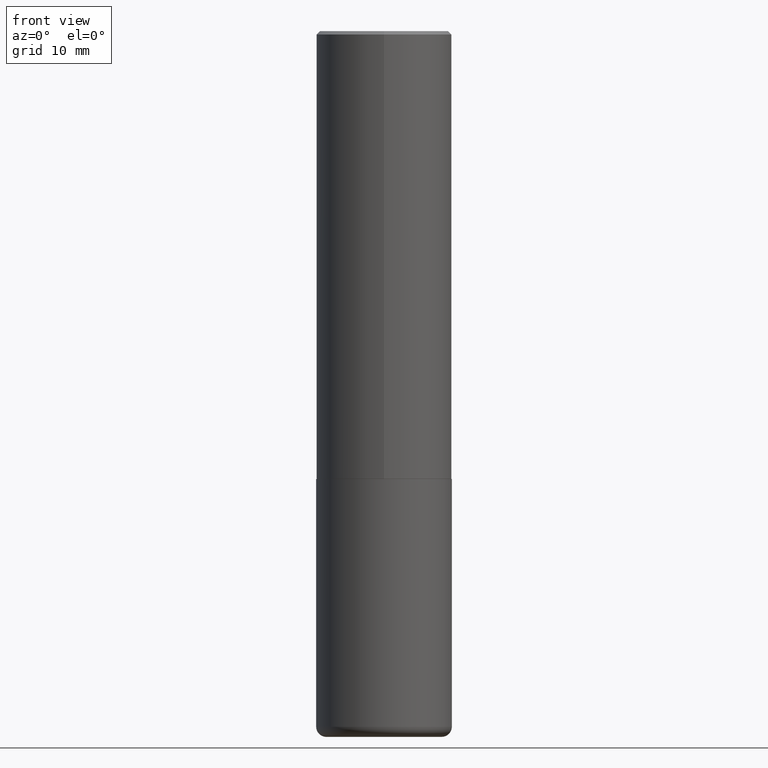
[diagram: clean part render]
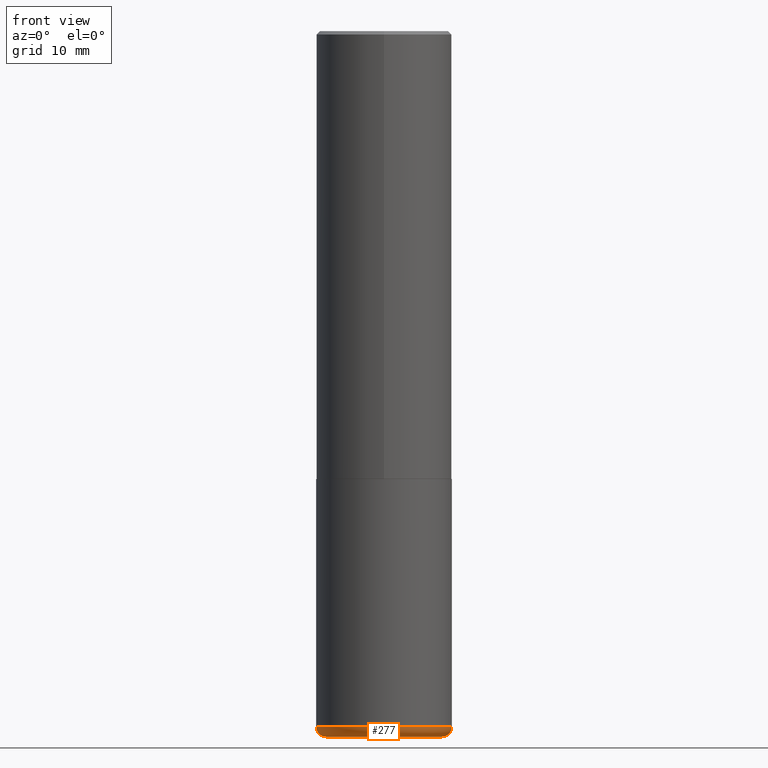
[diagram: same view with one face highlighted and labeled with its STEP entity id]
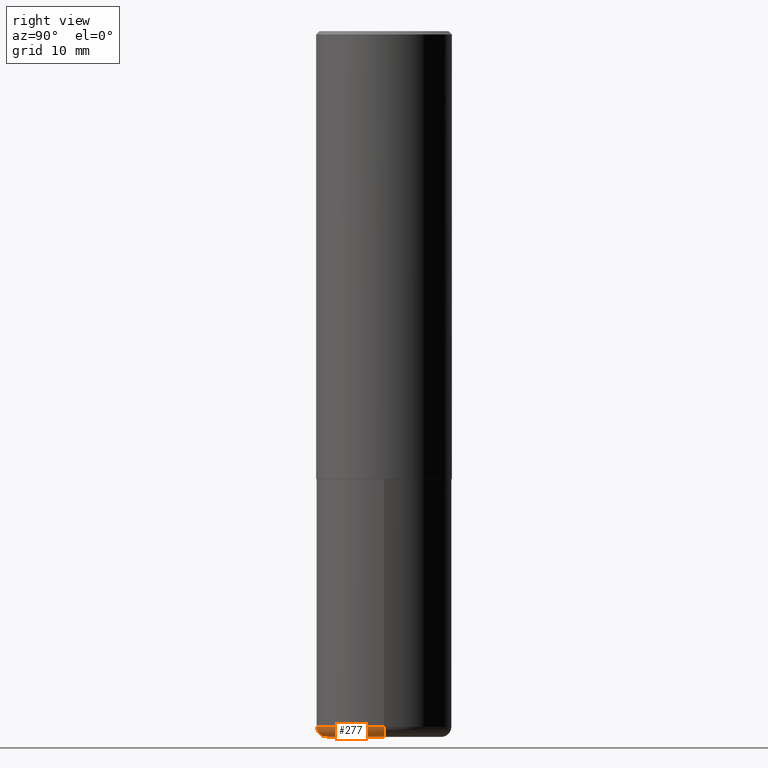
[diagram: same view with one face highlighted and labeled with its STEP entity id]
A machine part, front view. The second image highlights one B-rep face of the part: STEP entity #277.
A second angle (right view) of the same face is appended — the face is thin or edge-on in the first view.
In plain terms, the highlighted toroidal blend (fillet) surface has major radius 8.4988 mm and minor (blend) radius 1.5011 mm.
Its self-contained STEP definition (entity closure, byte-faithful):
#3 = VERTEX_POINT ( 'NONE', #144 ) ;
#8 = CIRCLE ( 'NONE', #206, 0.05909999999999992343 ) ;
#17 = TOROIDAL_SURFACE ( 'NONE', #377, 0.3346000000000000085, 0.05909999999999992343 ) ;
#26 = CARTESIAN_POINT ( 'NONE',  ( -0.3936999999999999389, -1.129211704408011394E-14, -4.035400000000000098 ) ) ;
#31 = CARTESIAN_POINT ( 'NONE',  ( -0.3346000000000000085, -1.171204780091433423E-14, -4.035400000000000098 ) ) ;
#40 = CIRCLE ( 'NONE', #225, 0.05909999999999992343 ) ;
#42 = VERTEX_POINT ( 'NONE', #274 ) ;
#49 = CARTESIAN_POINT ( 'NONE',  ( 9.868444820479501934E-29, -1.408952379476762952E-14, -4.035400000000000098 ) ) ;
#88 = CARTESIAN_POINT ( 'NONE',  ( 1.001297202692504215E-28, -1.429587034189326149E-14, -4.094500000000000028 ) ) ;
#95 = ORIENTED_EDGE ( 'NONE', *, *, #296, .T. ) ;
#98 = DIRECTION ( 'NONE',  ( 7.105427357601001859E-15, 1.000000000000000000, -3.491481338843145583E-15 ) ) ;
#111 = ORIENTED_EDGE ( 'NONE', *, *, #251, .F. ) ;
#119 = ORIENTED_EDGE ( 'NONE', *, *, #165, .T. ) ;
#124 = CIRCLE ( 'NONE', #261, 0.3936999999999999389 ) ;
#144 = CARTESIAN_POINT ( 'NONE',  ( 0.3936999999999999389, -1.683871620097271431E-14, -4.035400000000000098 ) ) ;
#149 = CARTESIAN_POINT ( 'NONE',  ( 0.3346000000000000085, -1.642602310672145667E-14, -4.035400000000000098 ) ) ;
#153 = DIRECTION ( 'NONE',  ( -2.445468806185136597E-29, 3.491481338843145583E-15, 1.000000000000000000 ) ) ;
#165 = EDGE_CURVE ( 'NONE', #245, #42, #233, .T. ) ;
#173 = VERTEX_POINT ( 'NONE', #26 ) ;
#185 = DIRECTION ( 'NONE',  ( -2.445468806185136597E-29, 3.491481338843145583E-15, 1.000000000000000000 ) ) ;
#188 = DIRECTION ( 'NONE',  ( 1.000000000000000000, -6.982962677686269077E-15, 4.883557194083114022E-29 ) ) ;
#202 = DIRECTION ( 'NONE',  ( 1.000000000000000000, -6.982962677686269866E-15, 0.000000000000000000 ) ) ;
#206 = AXIS2_PLACEMENT_3D ( 'NONE', #149, #253, #220 ) ;
#217 = AXIS2_PLACEMENT_3D ( 'NONE', #88, #415, #383 ) ;
#220 = DIRECTION ( 'NONE',  ( 1.000000000000000000, -6.982962677686271444E-15, 0.000000000000000000 ) ) ;
#225 = AXIS2_PLACEMENT_3D ( 'NONE', #31, #98, #306 ) ;
#233 = CIRCLE ( 'NONE', #217, 0.3346000000000000085 ) ;
#235 = EDGE_LOOP ( 'NONE', ( #111, #119, #95, #285 ) ) ;
#245 = VERTEX_POINT ( 'NONE', #325 ) ;
#248 = FACE_OUTER_BOUND ( 'NONE', #235, .T. ) ;
#251 = EDGE_CURVE ( 'NONE', #245, #173, #40, .T. ) ;
#253 = DIRECTION ( 'NONE',  ( -6.982962677686266711E-15, -1.000000000000000000, 3.491481338843145583E-15 ) ) ;
#261 = AXIS2_PLACEMENT_3D ( 'NONE', #49, #153, #202 ) ;
#274 = CARTESIAN_POINT ( 'NONE',  ( 0.3346000000000000085, -1.663236965384708707E-14, -4.094500000000000028 ) ) ;
#277 = ADVANCED_FACE ( 'NONE', ( #248 ), #17, .T. ) ;
#285 = ORIENTED_EDGE ( 'NONE', *, *, #396, .F. ) ;
#296 = EDGE_CURVE ( 'NONE', #42, #3, #8, .T. ) ;
#306 = DIRECTION ( 'NONE',  ( -1.000000000000000000, 7.105427357601001859E-15, 0.000000000000000000 ) ) ;
#325 = CARTESIAN_POINT ( 'NONE',  ( -0.3346000000000000085, -1.160525569606004165E-14, -4.094500000000000028 ) ) ;
#343 = CARTESIAN_POINT ( 'NONE',  ( 9.868444820479501934E-29, -1.408952379476762952E-14, -4.035400000000000098 ) ) ;
#377 = AXIS2_PLACEMENT_3D ( 'NONE', #343, #185, #188 ) ;
#383 = DIRECTION ( 'NONE',  ( 1.000000000000000000, -6.982962677686269866E-15, 0.000000000000000000 ) ) ;
#396 = EDGE_CURVE ( 'NONE', #173, #3, #124, .T. ) ;
#415 = DIRECTION ( 'NONE',  ( -2.445468806185136597E-29, 3.491481338843145583E-15, 1.000000000000000000 ) ) ;